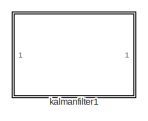
[diagram: root canvas - part 1/2, top right region]
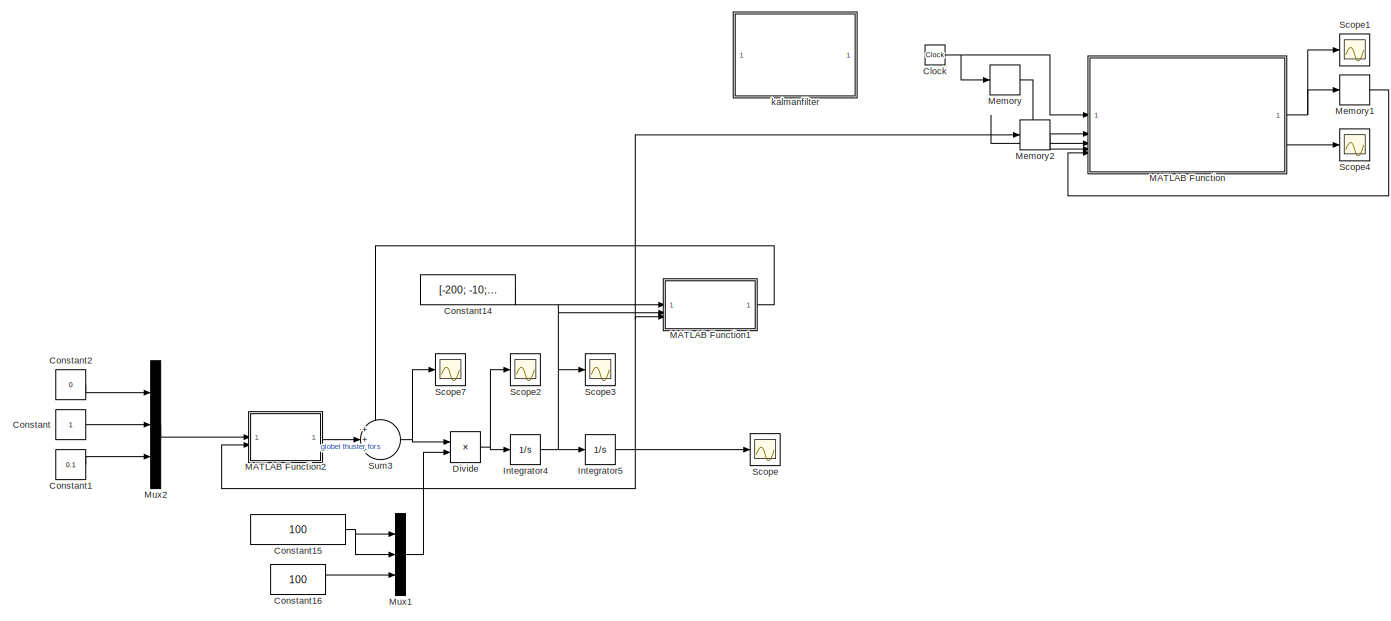
[diagram: root canvas - part 2/2, most of the canvas]
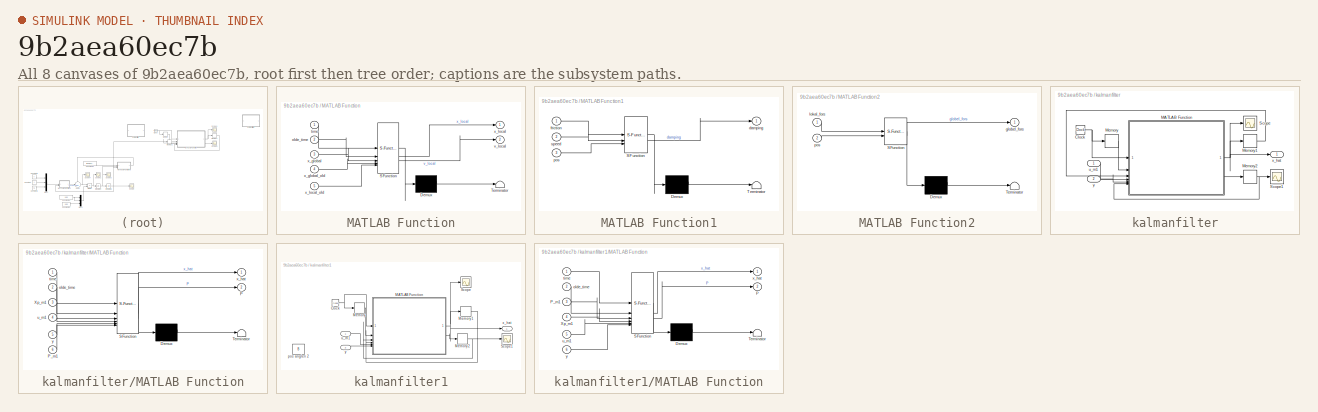
[diagram: thumbnail index - all 8 canvases of the model, root first then tree order]
MODEL slx_9b2aea60ec7b
KIND model
CONFIG AbsTol = auto
CONFIG EnableMultiTasking = off
CONFIG FixedStep = auto
CONFIG MaxStep = auto
CONFIG MinStep = auto
CONFIG RelTol = 1e-3
CONFIG SampleTimeConstraint = Unconstrained
CONFIG SolverName = VariableStepAuto
CONFIG StartTime = 0.0
CONFIG StopTime = 1000.0
BLOCK [Clock] Clock
BLOCK [Constant] Constant
BLOCK [Constant] Constant1
  Value = 0.1
BLOCK [Constant] Constant14
  Value = [-200; -10; -10]
BLOCK [Constant] Constant15
  Value = 100
BLOCK [Constant] Constant16
  Value = 100
BLOCK [Constant] Constant2
  Value = 0
BLOCK [Product] Divide
  Inputs = */
BLOCK [Integrator] Integrator4
  InitialCondition = [2; 2; 0]
BLOCK [Integrator] Integrator5
  InitialCondition = [0; 0; 1]
BLOCK [SubSystem] MATLAB Function
  ErrorFcn = Stateflow.Translate.translate
  PermitHierarchicalResolution = ExplicitOnly
  SFBlockType = MATLAB Function
  TreatAsAtomicUnit = on
BLOCK [Demux] MATLAB Function/ Demux 
  Outputs = 1
BLOCK [S-Function] MATLAB Function/ SFunction 
  EnableBusSupport = on
  FunctionName = sf_sfun
  PortCounts = [5 3]
  SFcnIsStateOwnerBlock = off
  SFunctionDeploymentMode = off
  Tag = Stateflow S-Function 2
BLOCK [Terminator] MATLAB Function/ Terminator 
BLOCK [Inport] MATLAB Function/olde_time
  Port = 2
BLOCK [Inport] MATLAB Function/time
BLOCK [Outport] MATLAB Function/v_local
  Port = 2
BLOCK [Inport] MATLAB Function/x_global
  Port = 3
BLOCK [Inport] MATLAB Function/x_global_old
  Port = 4
BLOCK [Outport] MATLAB Function/x_local
BLOCK [Inport] MATLAB Function/x_local_old
  Port = 5
BLOCK [SubSystem] MATLAB Function1
  ErrorFcn = Stateflow.Translate.translate
  PermitHierarchicalResolution = ExplicitOnly
  SFBlockType = MATLAB Function
  TreatAsAtomicUnit = on
BLOCK [Demux] MATLAB Function1/ Demux 
  Outputs = 1
BLOCK [S-Function] MATLAB Function1/ SFunction 
  EnableBusSupport = on
  FunctionName = sf_sfun
  PortCounts = [3 2]
  SFcnIsStateOwnerBlock = off
  SFunctionDeploymentMode = off
  Tag = Stateflow S-Function 1
BLOCK [Terminator] MATLAB Function1/ Terminator 
BLOCK [Outport] MATLAB Function1/damping
BLOCK [Inport] MATLAB Function1/friction
BLOCK [Inport] MATLAB Function1/pos
  Port = 3
BLOCK [Inport] MATLAB Function1/speed
  Port = 2
BLOCK [SubSystem] MATLAB Function2
  ErrorFcn = Stateflow.Translate.translate
  PermitHierarchicalResolution = ExplicitOnly
  SFBlockType = MATLAB Function
  TreatAsAtomicUnit = on
BLOCK [Demux] MATLAB Function2/ Demux 
  Outputs = 1
BLOCK [S-Function] MATLAB Function2/ SFunction 
  EnableBusSupport = on
  FunctionName = sf_sfun
  PortCounts = [2 2]
  SFcnIsStateOwnerBlock = off
  SFunctionDeploymentMode = off
  Tag = Stateflow S-Function 5
BLOCK [Terminator] MATLAB Function2/ Terminator 
BLOCK [Outport] MATLAB Function2/globel_fors
BLOCK [Inport] MATLAB Function2/lokal_fors
BLOCK [Inport] MATLAB Function2/pos
  Port = 2
BLOCK [Memory] Memory
BLOCK [Memory] Memory1
  InitialCondition = [0;0;0]
BLOCK [Memory] Memory2
  InitialCondition = [0;0;0]
BLOCK [Mux] Mux1
  DisplayOption = bar
  Inputs = 3
BLOCK [Mux] Mux2
  DisplayOption = bar
  Inputs = 3
BLOCK [Scope] Scope
  Floating = off
  NumInputPorts = 1
  ScopeSpecificationString = Simulink.scopes.TimeScopeBlockCfg('CurrentConfiguration', extmgr.ConfigurationSet(extmgr.Configuration('Core','General UI',true),extmgr.Configuration('Core','Source UI',true),extmgr.Configuration('Sources','WiredSimulink',true),extmgr.Configuration('Visuals','Time Domain',true,'SerializedDisplays',{struct('MinYLimReal','-14.78654','MaxYLimReal','19.74631','YLabelReal','','MinYLimMag','0.00000','Ma...<+1485ch>
BLOCK [Scope] Scope1
  Floating = off
  NumInputPorts = 1
  ScopeSpecificationString = Simulink.scopes.TimeScopeBlockCfg('CurrentConfiguration', extmgr.ConfigurationSet(extmgr.Configuration('Core','General UI',true),extmgr.Configuration('Core','Source UI',true),extmgr.Configuration('Sources','WiredSimulink',true,'DataLoggingVariableName','ScopeData1'),extmgr.Configuration('Visuals','Time Domain',true,'SerializedDisplays',{struct('MinYLimReal','-19.19935','MaxYLimReal','13.13326','YL...<+1562ch>
BLOCK [Scope] Scope2
  Floating = off
  NumInputPorts = 1
  ScopeSpecificationString = Simulink.scopes.TimeScopeBlockCfg('CurrentConfiguration', extmgr.ConfigurationSet(extmgr.Configuration('Core','General UI',true),extmgr.Configuration('Core','Source UI',true),extmgr.Configuration('Sources','WiredSimulink',true,'DataLoggingVariableName','ScopeData1'),extmgr.Configuration('Visuals','Time Domain',true,'SerializedDisplays',{struct('MinYLimReal','-0.00807','MaxYLimReal','0.00807','YLab...<+1916ch>
BLOCK [Scope] Scope3
  Floating = off
  NumInputPorts = 1
  ScopeSpecificationString = Simulink.scopes.TimeScopeBlockCfg('CurrentConfiguration', extmgr.ConfigurationSet(extmgr.Configuration('Core','General UI',true),extmgr.Configuration('Core','Source UI',true),extmgr.Configuration('Sources','WiredSimulink',true,'DataLoggingVariableName','ScopeData2'),extmgr.Configuration('Visuals','Time Domain',true,'SerializedDisplays',{struct('MinYLimReal','-0.03405','MaxYLimReal','0.05436','YLab...<+1887ch>
BLOCK [Scope] Scope4
  Floating = off
  NumInputPorts = 1
  ScopeSpecificationString = Simulink.scopes.TimeScopeBlockCfg('CurrentConfiguration', extmgr.ConfigurationSet(extmgr.Configuration('Core','General UI',true),extmgr.Configuration('Core','Source UI',true),extmgr.Configuration('Sources','WiredSimulink',true,'DataLoggingVariableName','ScopeData2'),extmgr.Configuration('Visuals','Time Domain',true,'SerializedDisplays',{struct('MinYLimReal','-1.02304','MaxYLimReal','3.18397','YLab...<+1556ch>
BLOCK [Scope] Scope7
  Floating = off
  NumInputPorts = 1
  ScopeSpecificationString = Simulink.scopes.TimeScopeBlockCfg('CurrentConfiguration', extmgr.ConfigurationSet(extmgr.Configuration('Core','General UI',true),extmgr.Configuration('Core','Source UI',true),extmgr.Configuration('Sources','WiredSimulink',true,'DataLoggingVariableName','ScopeData3'),extmgr.Configuration('Visuals','Time Domain',true,'SerializedDisplays',{struct('MinYLimReal','-0.00807','MaxYLimReal','0.00807','YLab...<+1916ch>
BLOCK [Sum] Sum3
  Inputs = +++
BLOCK [SubSystem] kalmanfilter
BLOCK [Clock] kalmanfilter/Clock
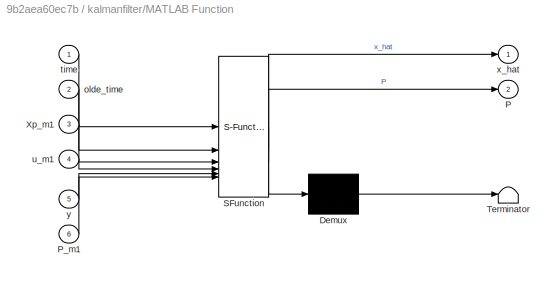
BLOCK [SubSystem] kalmanfilter/MATLAB Function
  ErrorFcn = Stateflow.Translate.translate
  PermitHierarchicalResolution = ExplicitOnly
  SFBlockType = MATLAB Function
  TreatAsAtomicUnit = on
BLOCK [Demux] kalmanfilter/MATLAB Function/ Demux 
  Outputs = 1
BLOCK [S-Function] kalmanfilter/MATLAB Function/ SFunction 
  EnableBusSupport = on
  FunctionName = sf_sfun
  PortCounts = [6 3]
  SFcnIsStateOwnerBlock = off
  SFunctionDeploymentMode = off
  Tag = Stateflow S-Function 7
BLOCK [Terminator] kalmanfilter/MATLAB Function/ Terminator 
BLOCK [Outport] kalmanfilter/MATLAB Function/P
  Port = 2
BLOCK [Inport] kalmanfilter/MATLAB Function/P_m1
  Port = 6
BLOCK [Inport] kalmanfilter/MATLAB Function/Xp_m1
  Port = 3
BLOCK [Inport] kalmanfilter/MATLAB Function/olde_time
  Port = 2
BLOCK [Inport] kalmanfilter/MATLAB Function/time
BLOCK [Inport] kalmanfilter/MATLAB Function/u_m1
  Port = 4
BLOCK [Outport] kalmanfilter/MATLAB Function/x_hat
BLOCK [Inport] kalmanfilter/MATLAB Function/y
  Port = 5
BLOCK [Memory] kalmanfilter/Memory
BLOCK [Memory] kalmanfilter/Memory1
  InitialCondition = [0;0;1;10;10;0;800;80;1800]
BLOCK [Memory] kalmanfilter/Memory2
  InitialCondition = eye(9) * 1e-3;
BLOCK [Scope] kalmanfilter/Scope
  Floating = off
  NumInputPorts = 1
  ScopeSpecificationString = Simulink.scopes.TimeScopeBlockCfg('CurrentConfiguration', extmgr.ConfigurationSet(extmgr.Configuration('Core','General UI',true),extmgr.Configuration('Core','Source UI',true),extmgr.Configuration('Sources','WiredSimulink',true,'DataLoggingVariableName','ScopeData3'),extmgr.Configuration('Visuals','Time Domain',true,'SerializedDisplays',{struct('MinYLimReal','-31897307342366005212122595351856116077...<+3074ch>
BLOCK [Scope] kalmanfilter/Scope1
  Floating = off
  NumInputPorts = 1
  ScopeSpecificationString = Simulink.scopes.TimeScopeBlockCfg('CurrentConfiguration', extmgr.ConfigurationSet(extmgr.Configuration('Core','General UI',true),extmgr.Configuration('Core','Source UI',true),extmgr.Configuration('Sources','WiredSimulink',true,'DataLoggingVariableName','ScopeData4'),extmgr.Configuration('Visuals','Time Domain',true,'SerializedDisplays',{struct('MinYLimReal','-0.35806','MaxYLimReal','2.70845','YLab...<+4420ch>
BLOCK [Inport] kalmanfilter/u_m1
BLOCK [Outport] kalmanfilter/x_hat
BLOCK [Inport] kalmanfilter/y
  Port = 2
BLOCK [SubSystem] kalmanfilter1
BLOCK [Clock] kalmanfilter1/Clock
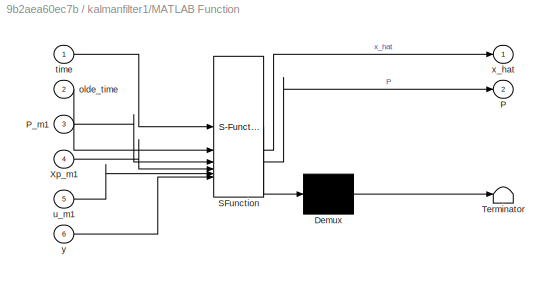
BLOCK [SubSystem] kalmanfilter1/MATLAB Function
  ErrorFcn = Stateflow.Translate.translate
  PermitHierarchicalResolution = ExplicitOnly
  SFBlockType = MATLAB Function
  TreatAsAtomicUnit = on
BLOCK [Demux] kalmanfilter1/MATLAB Function/ Demux 
  Outputs = 1
BLOCK [S-Function] kalmanfilter1/MATLAB Function/ SFunction 
  EnableBusSupport = on
  FunctionName = sf_sfun
  PortCounts = [6 3]
  SFcnIsStateOwnerBlock = off
  SFunctionDeploymentMode = off
  Tag = Stateflow S-Function 3
BLOCK [Terminator] kalmanfilter1/MATLAB Function/ Terminator 
BLOCK [Outport] kalmanfilter1/MATLAB Function/P
  Port = 2
BLOCK [Inport] kalmanfilter1/MATLAB Function/P_m1
  Port = 3
BLOCK [Inport] kalmanfilter1/MATLAB Function/Xp_m1
  Port = 4
BLOCK [Inport] kalmanfilter1/MATLAB Function/olde_time
  Port = 2
BLOCK [Inport] kalmanfilter1/MATLAB Function/time
BLOCK [Inport] kalmanfilter1/MATLAB Function/u_m1
  Port = 5
BLOCK [Outport] kalmanfilter1/MATLAB Function/x_hat
BLOCK [Inport] kalmanfilter1/MATLAB Function/y
  Port = 6
BLOCK [Memory] kalmanfilter1/Memory
BLOCK [Memory] kalmanfilter1/Memory1
  InitialCondition = [0;0;1;10;10;0;800;80;1800]
BLOCK [Memory] kalmanfilter1/Memory2
  InitialCondition = eye(9) * 1e-3;
BLOCK [Scope] kalmanfilter1/Scope
  Floating = off
  NumInputPorts = 1
  ScopeSpecificationString = Simulink.scopes.TimeScopeBlockCfg('CurrentConfiguration', extmgr.ConfigurationSet(extmgr.Configuration('Core','General UI',true),extmgr.Configuration('Core','Source UI',true),extmgr.Configuration('Sources','WiredSimulink',true,'DataLoggingVariableName','ScopeData3'),extmgr.Configuration('Visuals','Time Domain',true,'SerializedDisplays',{struct('MinYLimReal','-31897307342366005212122595351856116077...<+3074ch>
BLOCK [Scope] kalmanfilter1/Scope1
  Floating = off
  NumInputPorts = 1
  ScopeSpecificationString = Simulink.scopes.TimeScopeBlockCfg('CurrentConfiguration', extmgr.ConfigurationSet(extmgr.Configuration('Core','General UI',true),extmgr.Configuration('Core','Source UI',true),extmgr.Configuration('Sources','WiredSimulink',true,'DataLoggingVariableName','ScopeData4'),extmgr.Configuration('Visuals','Time Domain',true,'SerializedDisplays',{struct('MinYLimReal','-0.35806','MaxYLimReal','2.70845','YLab...<+4420ch>
BLOCK [Constant] kalmanfilter1/pos anglen 2
  Value = B
BLOCK [Inport] kalmanfilter1/u_m1
BLOCK [Outport] kalmanfilter1/x_hat
BLOCK [Inport] kalmanfilter1/y
  Port = 2
NET Clock:1 -> MATLAB Function:1, Memory:1
LINE Constant14:1 -> MATLAB Function1:1
NET Constant15:1 -> Mux1:1, Mux1:2
LINE Constant16:1 -> Mux1:3
LINE Constant1:1 -> Mux2:3
LINE Constant2:1 -> Mux2:1
LINE Constant:1 -> Mux2:2
NET Divide:1 -> Integrator4:1, Scope2:1
NET Integrator4:1 -> Integrator5:1, MATLAB Function1:2, Scope3:1
NET Integrator5:1 -> MATLAB Function1:3, MATLAB Function2:2, MATLAB Function:3, Memory2:1, Scope:1
LINE MATLAB Function1:1 -> Sum3:1
LINE MATLAB Function2:1 -> Sum3:2
NET MATLAB Function:1 -> Memory1:1, Scope1:1
LINE MATLAB Function:2 -> Scope4:1
LINE Memory1:1 -> MATLAB Function:5
LINE Memory2:1 -> MATLAB Function:4
LINE Memory:1 -> MATLAB Function:2
LINE Mux1:1 -> Divide:2
LINE Mux2:1 -> MATLAB Function2:1
NET Sum3:1 -> Divide:1, Scope7:1
NET kalmanfilter/Clock:1 -> kalmanfilter/MATLAB Function:1, kalmanfilter/Memory:1
NET kalmanfilter/MATLAB Function:1 -> kalmanfilter/Memory1:1, kalmanfilter/Scope:1, kalmanfilter/x_hat:1
LINE kalmanfilter/MATLAB Function:2 -> kalmanfilter/Memory2:1
LINE kalmanfilter/Memory1:1 -> kalmanfilter/MATLAB Function:3
NET kalmanfilter/Memory2:1 -> kalmanfilter/MATLAB Function:6, kalmanfilter/Scope1:1
LINE kalmanfilter/Memory:1 -> kalmanfilter/MATLAB Function:2
LINE kalmanfilter/u_m1:1 -> kalmanfilter/MATLAB Function:4
LINE kalmanfilter/y:1 -> kalmanfilter/MATLAB Function:5
NET kalmanfilter1/Clock:1 -> kalmanfilter1/MATLAB Function:1, kalmanfilter1/Memory:1
NET kalmanfilter1/MATLAB Function:1 -> kalmanfilter1/Memory1:1, kalmanfilter1/Scope:1, kalmanfilter1/x_hat:1
LINE kalmanfilter1/MATLAB Function:2 -> kalmanfilter1/Memory2:1
LINE kalmanfilter1/Memory1:1 -> kalmanfilter1/MATLAB Function:4
NET kalmanfilter1/Memory2:1 -> kalmanfilter1/MATLAB Function:3, kalmanfilter1/Scope1:1
LINE kalmanfilter1/Memory:1 -> kalmanfilter1/MATLAB Function:2
LINE kalmanfilter1/u_m1:1 -> kalmanfilter1/MATLAB Function:5
LINE kalmanfilter1/y:1 -> kalmanfilter1/MATLAB Function:6
note: NET lines group one-source signal fan-out (src -> all destinations, sorted); 1:1 wires keep LINE
CHART MATLAB Function1 states=1 transitions=1
  STATE_LABEL 'eML_blk_kernel()'
  STATE_LABEL 'SCRIPT:\nfunction damping = fcn(friction, speed, pos)\n\nfirk = [friction(1) 0           0           ;\n        0           friction(2) 0           ;\n        0           0           friction(3)];\n\nglo_to_lok = [cos(-pos(3)) -sin(-pos(3)) 0 ;\n              sin(-pos(3)) cos(-pos(3))  0 ;\n              0           0              1];\n\n%s = speed\n%rotl = inv(glo_to_lok)*firk*glo_to_lok;\ndamping = inv(glo_t...<+29ch>'
CHART MATLAB Function states=1 transitions=1
  STATE_LABEL 'eML_blk_kernel()'
  STATE_LABEL 'SCRIPT:\nfunction [x_local, v_local] = transform_global_to_local(time, olde_time, x_global, x_global_old, x_local_old)\n\n    td = time - olde_time;\n    % Rotation matrix\n    v_n = @(x, x_prev, td) [cos(x_prev(3))  sin(x_prev(3))  0;\n                            -sin(x_prev(3)) cos(x_prev(3))  0;\n                            0               0               1] * (x - x_prev)/td;\n    if td == 0 \n        ...<+132ch>'
CHART kalmanfilter1/MATLAB Function states=1 transitions=1
  STATE_LABEL 'eML_blk_kernel()'
  STATE_LABEL 'SCRIPT:\nfunction [x_hat, P] = extended_kalman_filter_sim(time, olde_time, P_m1, Xp_m1, u_m1, y)\n    % Time step\n    td = time - olde_time;\n    length_x = 2.74;\n    length_y = 5.32;\n    c = -1;\n    moter_left  = [-length_x/2, -length_y/2+c, 0, 0];\n    moter_right = [ length_x/2, -length_y/2+c, 0, 0];\n    moter_bow   = [ 0,           length_y+c  , 0, 0];\n\n    m = 1500; % Mass of the boat\n    I = (le...<+3608ch>'
CHART MATLAB Function2 states=1 transitions=1
  STATE_LABEL 'eML_blk_kernel()'
  STATE_LABEL 'SCRIPT:\nfunction globel_fors = fcn(lokal_fors ,pos)\n\nxy_pos = [lokal_fors(1);lokal_fors(2)];\n\nglo_to_lok = [cos(pos(3)) -sin(pos(3));\n              sin(pos(3)) cos(pos(3))];\n\ngb_xy_fors = inv(glo_to_lok)*xy_pos;\n\nglobel_fors  = [gb_xy_fors(1);gb_xy_fors(2); lokal_fors(3)];'
CHART kalmanfilter/MATLAB Function states=1 transitions=1
  STATE_LABEL 'eML_blk_kernel()'
  STATE_LABEL 'SCRIPT:\nfunction [x_hat, P] = extended_kalman_filter_sim(time, olde_time, Xp_m1, u_m1, y, P_m1)\n    % Time step\n    td = time - olde_time;\n    length_x = 2.74;\n    length_y = 5.32;\n    c = -1;\n    moter_left  = [-length_x/2, -length_y/2+c, 0, 0];\n    moter_right = [ length_x/2, -length_y/2+c, 0, 0];\n    moter_bow   = [ 0,           length_y+c  , 0, 0];\n\n    m = 1500; % Mass of the boat\n    I = (le...<+3608ch>'
CHART  states=0 transitions=0
CHART  states=0 transitions=0
CHART  states=0 transitions=0
CHART  states=0 transitions=0
CHART  states=0 transitions=0
